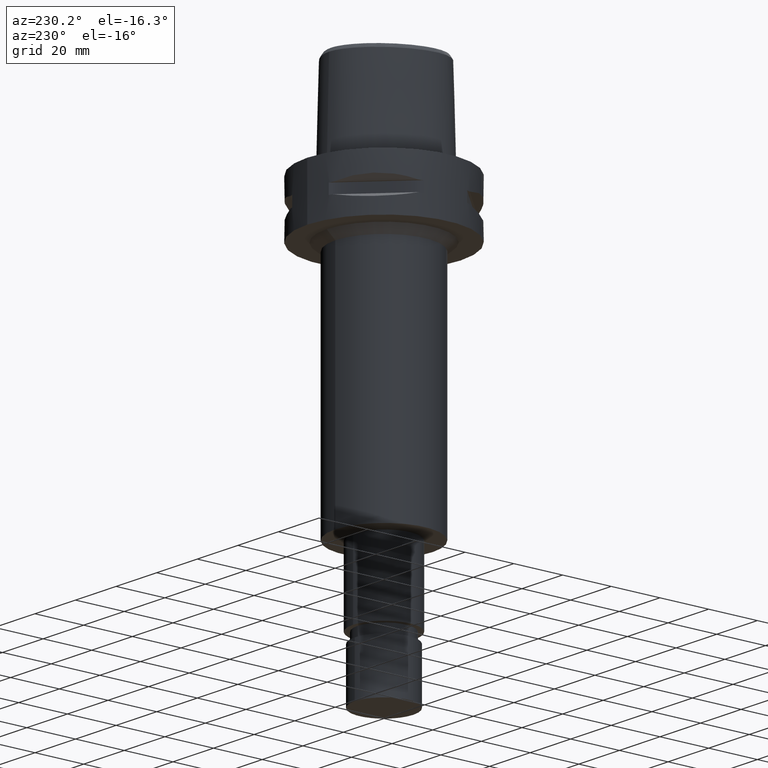
[diagram: clean part render]
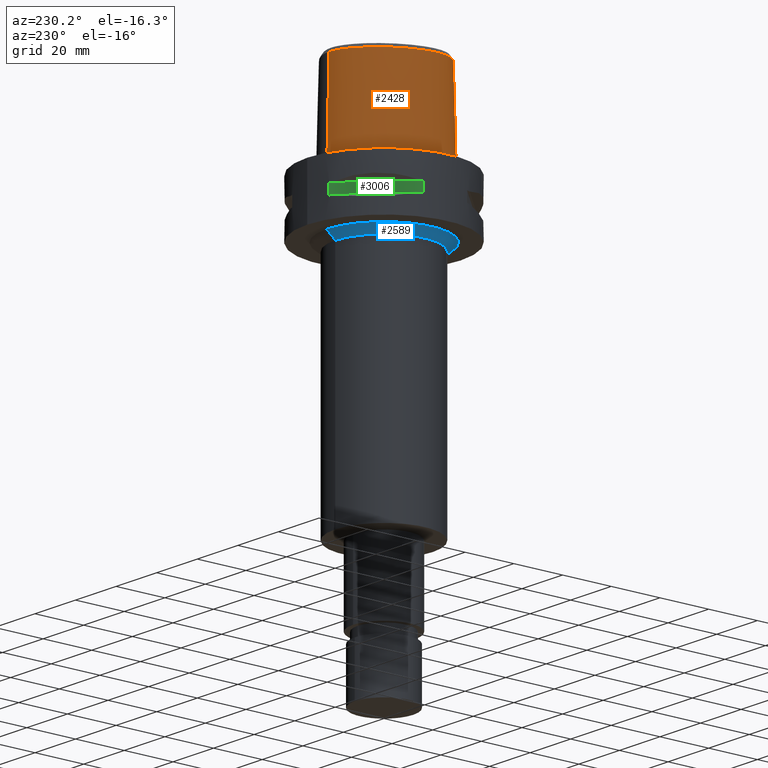
[diagram: same view with three faces highlighted in distinct colors, each labeled with its STEP entity id]
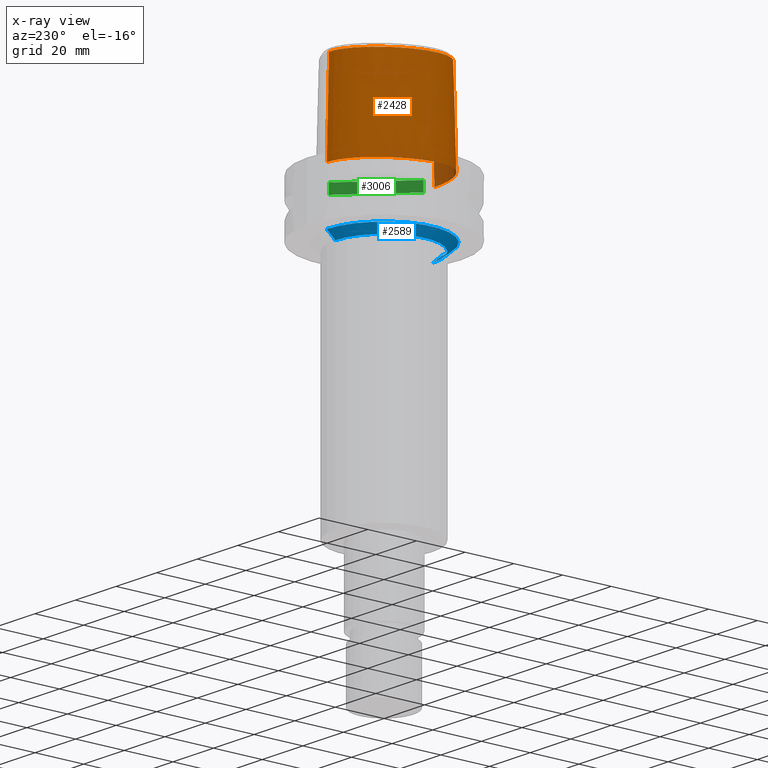
[diagram: x-ray of the same camera — body ghosted, the three highlighted faces saturated]
A machine part, auxiliary view with three faces highlighted in distinct colors.
The next image is the same camera in x-ray (body ghosted, the three faces saturated) — at least one of them is partly hidden behind the body in this view.
Their STEP definitions:

[orange] entity #2428 — the highlighted face is a freeform B-spline surface patch.
#186=CARTESIAN_POINT('',(-3.637738201364E0,-1.956971413237E1,3.652186244848E1));
#187=CARTESIAN_POINT('',(-4.596214291546E0,-1.946759179898E1,3.652183351792E1));
#188=CARTESIAN_POINT('',(-6.455616650880E0,-1.918625052747E1,3.652188283337E1));
#189=CARTESIAN_POINT('',(-9.014616283423E0,-1.856346125823E1,3.652186171838E1));
#190=CARTESIAN_POINT('',(-1.122481407811E1,-1.781245211381E1,3.652187608435E1));
#191=CARTESIAN_POINT('',(-1.317311223023E1,-1.694858801266E1,3.652186209620E1));
#192=CARTESIAN_POINT('',(-1.486991988526E1,-1.599015838104E1,3.652186916697E1));
#193=CARTESIAN_POINT('',(-1.628274226713E1,-1.499251589473E1,3.652186600315E1));
#194=CARTESIAN_POINT('',(-1.746206341881E1,-1.396245457933E1,3.652186741443E1));
#195=CARTESIAN_POINT('',(-1.843297818088E1,-1.291082025189E1,3.652186667196E1));
#196=CARTESIAN_POINT('',(-1.922382930162E1,-1.183984870140E1,3.652191240883E1));
#197=CARTESIAN_POINT('',(-1.986438360685E1,-1.073016133056E1,3.652185770808E1));
#198=CARTESIAN_POINT('',(-2.039448376192E1,-9.516238287825E0,3.652187101360E1));
#199=CARTESIAN_POINT('',(-2.082143421992E1,-8.147191475789E0,3.652186531068E1));
#200=CARTESIAN_POINT('',(-2.112402644291E1,-6.613718304226E0,3.652186978415E1));
#201=CARTESIAN_POINT('',(-2.128254501784E1,-4.889517123142E0,3.652187293171E1));
#202=CARTESIAN_POINT('',(-2.126508184978E1,-2.945078093034E0,3.652186408107E1));
#203=CARTESIAN_POINT('',(-2.104010015591E1,-8.272083189960E-1,
3.652186813258E1));
#204=CARTESIAN_POINT('',(-2.058959878866E1,1.450838442725E0,3.652186987852E1));
#205=CARTESIAN_POINT('',(-1.984871905172E1,3.988453380292E0,3.652186310802E1));
#206=CARTESIAN_POINT('',(-1.881867741573E1,6.619582921024E0,3.652184427655E1));
#207=CARTESIAN_POINT('',(-1.751092218687E1,9.263703909910E0,3.652186369806E1));
#208=CARTESIAN_POINT('',(-1.597084306762E1,1.180128938006E1,3.652186746362E1));
#209=CARTESIAN_POINT('',(-1.426036309561E1,1.414084119145E1,3.652186498635E1));
#210=CARTESIAN_POINT('',(-1.245243783567E1,1.620656872004E1,3.652186539838E1));
#211=CARTESIAN_POINT('',(-1.065400311944E1,1.792467015507E1,3.652186824908E1));
#212=CARTESIAN_POINT('',(-8.928515052359E0,1.930246882317E1,3.652186764513E1));
#213=CARTESIAN_POINT('',(-7.228289482286E0,2.041987750381E1,3.652186669466E1));
#214=CARTESIAN_POINT('',(-5.600596180581E0,2.127186442873E1,3.652186487876E1));
#215=CARTESIAN_POINT('',(-4.078533037974E0,2.188021913689E1,3.652187180955E1));
#216=CARTESIAN_POINT('',(-2.640920208615E0,2.228631978850E1,3.652187072961E1));
#217=CARTESIAN_POINT('',(-1.280910670780E0,2.251428546683E1,3.652181969119E1));
#218=CARTESIAN_POINT('',(-4.274342398121E-1,2.256201468012E1,3.652186680743E1));
#219=CARTESIAN_POINT('',(-1.838531502740E-11,2.256201468012E1,
3.652186680744E1));
#231=CARTESIAN_POINT('',(-3.637738201364E0,-1.956971413237E1,3.652186244848E1));
#232=CARTESIAN_POINT('',(-3.649042726833E0,-1.958170231834E1,3.599710491520E1));
#233=CARTESIAN_POINT('',(-3.671106183707E0,-1.960533297179E1,3.494764182412E1));
#234=CARTESIAN_POINT('',(-3.704089539557E0,-1.964135162194E1,3.337369009748E1));
#235=CARTESIAN_POINT('',(-3.726005756395E0,-1.966575923510E1,3.232454432382E1));
#236=CARTESIAN_POINT('',(-3.736696126116E0,-1.967778323257E1,3.18E1));
#241=DIRECTION('',(-1.665636293796E-9,-2.499140646182E-2,-9.996876660253E-1));
#242=VECTOR('',#241,1.225382733632E1);
#243=CARTESIAN_POINT('',(2.041042029991E-8,-1.988004246002E1,3.180000004972E1));
#244=LINE('',#243,#242);
#248=CARTESIAN_POINT('',(0.E0,-2.018628283969E1,1.955E1));
#249=CARTESIAN_POINT('',(-3.856895391280E-1,-2.018628283969E1,1.955E1));
#250=CARTESIAN_POINT('',(-1.156990957255E0,-2.017597984157E1,1.943895893816E1));
#251=CARTESIAN_POINT('',(-2.218974166701E0,-2.013552730906E1,1.895406583031E1));
#252=CARTESIAN_POINT('',(-3.103837936943E0,-2.008533807411E1,1.818778244968E1));
#253=CARTESIAN_POINT('',(-3.736879261136E0,-2.004595787825E1,1.720042665982E1));
#254=CARTESIAN_POINT('',(-4.064001073615E0,-2.003617272084E1,1.608031858327E1));
#255=CARTESIAN_POINT('',(-4.063020619392E0,-2.006566388540E1,1.491391748472E1));
#256=CARTESIAN_POINT('',(-3.735326478736E0,-2.013171838185E1,1.379707110157E1));
#257=CARTESIAN_POINT('',(-3.103904819207E0,-2.022026156512E1,1.281235779050E1));
#258=CARTESIAN_POINT('',(-2.217371925353E0,-2.030873033323E1,1.204454096443E1));
#259=CARTESIAN_POINT('',(-1.153256243952E0,-2.037314278516E1,1.156000177627E1));
#260=CARTESIAN_POINT('',(-3.840360556272E-1,-2.038876923348E1,1.145E1));
#261=CARTESIAN_POINT('',(-6.476573784197E-13,-2.038876923348E1,1.145E1));
#266=DIRECTION('',(-3.953535233008E-13,-2.499051295390E-2,-9.996876883619E-1));
#267=VECTOR('',#266,1.145357708542E1);
#268=CARTESIAN_POINT('',(-6.476573784197E-13,-2.038876923348E1,1.145E1));
#269=LINE('',#268,#267);
#329=CARTESIAN_POINT('',(3.584904067566E-11,2.347499999999E1,
5.306866057708E-14));
#330=CARTESIAN_POINT('',(-4.425934249249E-1,2.347499999999E1,
5.306866057708E-14));
#331=CARTESIAN_POINT('',(-1.347540240597E0,2.342619104246E1,
-2.462925108702E-14));
#332=CARTESIAN_POINT('',(-2.759385091736E0,2.319514735165E1,0.E0));
#333=CARTESIAN_POINT('',(-4.240303192041E0,2.278911272463E1,0.E0));
#334=CARTESIAN_POINT('',(-5.800522540047E0,2.218327564678E1,0.E0));
#335=CARTESIAN_POINT('',(-7.437892820341E0,2.135235568419E1,0.E0));
#336=CARTESIAN_POINT('',(-9.157184077977E0,2.026173423927E1,0.E0));
#337=CARTESIAN_POINT('',(-1.094315986300E1,1.888157453325E1,0.E0));
#338=CARTESIAN_POINT('',(-1.276613295223E1,1.719216463502E1,0.E0));
#339=CARTESIAN_POINT('',(-1.458165098578E1,1.518880885006E1,0.E0));
#340=CARTESIAN_POINT('',(-1.631719822992E1,1.291146788163E1,0.E0));
#341=CARTESIAN_POINT('',(-1.790888759892E1,1.041336242015E1,0.E0));
#342=CARTESIAN_POINT('',(-1.928429036980E1,7.794383498739E0,0.E0));
#343=CARTESIAN_POINT('',(-2.040331671633E1,5.145336301700E0,0.E0));
#344=CARTESIAN_POINT('',(-2.124023148970E1,2.573980686280E0,0.E0));
#345=CARTESIAN_POINT('',(-2.180429297827E1,1.416733793317E-1,0.E0));
#346=CARTESIAN_POINT('',(-2.211683415069E1,-2.102552498777E0,0.E0));
#347=CARTESIAN_POINT('',(-2.221119242995E1,-4.145710630519E0,0.E0));
#348=CARTESIAN_POINT('',(-2.211903796219E1,-5.995510773279E0,0.E0));
#349=CARTESIAN_POINT('',(-2.187046734906E1,-7.650655585987E0,0.E0));
#350=CARTESIAN_POINT('',(-2.148955285703E1,-9.137235138176E0,0.E0));
#351=CARTESIAN_POINT('',(-2.098804739969E1,-1.048615289708E1,0.E0));
#352=CARTESIAN_POINT('',(-2.036678339055E1,-1.172667110062E1,0.E0));
#353=CARTESIAN_POINT('',(-1.960201090599E1,-1.289757179390E1,0.E0));
#354=CARTESIAN_POINT('',(-1.868739028833E1,-1.400986605028E1,0.E0));
#355=CARTESIAN_POINT('',(-1.759020406811E1,-1.508942649620E1,0.E0));
#356=CARTESIAN_POINT('',(-1.628423636331E1,-1.613439028964E1,0.E0));
#357=CARTESIAN_POINT('',(-1.473804225492E1,-1.713801774676E1,0.E0));
#358=CARTESIAN_POINT('',(-1.292622831926E1,-1.808092209426E1,0.E0));
#359=CARTESIAN_POINT('',(-1.082972864264E1,-1.893611047739E1,0.E0));
#360=CARTESIAN_POINT('',(-8.443448479143E0,-1.966822337565E1,0.E0));
#361=CARTESIAN_POINT('',(-5.794439134800E0,-2.023428714758E1,0.E0));
#362=CARTESIAN_POINT('',(-2.954881275029E0,-2.059190544886E1,
-2.595174225418E-14));
#363=CARTESIAN_POINT('',(-9.990027701863E-1,-2.0675E1,5.591823300695E-14));
#364=CARTESIAN_POINT('',(-5.175869433538E-12,-2.0675E1,5.591823300695E-14));
#1165=DIRECTION('',(1.484519342029E-12,2.499051290972E-2,-9.996876883630E-1));
#1166=VECTOR('',#1165,3.653327657485E1);
#1167=CARTESIAN_POINT('',(-1.838531502740E-11,2.256201468012E1,
3.652186680744E1));
#1168=LINE('',#1167,#1166);
#1540=CARTESIAN_POINT('',(2.041042029991E-8,-1.988004246002E1,
3.180000004972E1));
#1541=CARTESIAN_POINT('',(-4.161790280178E-1,-1.988004245993E1,
3.180000004972E1));
#1542=CARTESIAN_POINT('',(-1.247889105566E0,-1.986528007158E1,
3.179999997680E1));
#1543=CARTESIAN_POINT('',(-2.494485023973E0,-1.979770229313E1,
3.180000000663E1));
#1544=CARTESIAN_POINT('',(-3.322953884429E0,-1.972294683092E1,3.18E1));
#1545=CARTESIAN_POINT('',(-3.736696126116E0,-1.967778323257E1,3.18E1));
#1581=CARTESIAN_POINT('',(-3.736722311399E0,-1.967781602444E1,3.18E1));
#1582=VERTEX_POINT('',#1581);
#1583=VERTEX_POINT('',#231);
#1584=CARTESIAN_POINT('',(-1.838531502740E-11,2.256201468012E1,
3.652186680744E1));
#1585=VERTEX_POINT('',#1584);
#1586=VERTEX_POINT('',#329);
#1587=VERTEX_POINT('',#364);
#1588=VERTEX_POINT('',#1540);
#1589=CARTESIAN_POINT('',(0.E0,-2.018628283969E1,1.955E1));
#1590=VERTEX_POINT('',#1589);
#1591=VERTEX_POINT('',#261);
#2311=CARTESIAN_POINT('',(7.234356454574E-1,2.347140593255E1,
-7.304379142534E-1));
#2312=CARTESIAN_POINT('',(7.042335219889E-1,2.315549811042E1,1.193048593281E1));
#2313=CARTESIAN_POINT('',(6.850313985203E-1,2.283959028830E1,2.459140977987E1));
#2314=CARTESIAN_POINT('',(6.658292750518E-1,2.252368246617E1,3.725233362692E1));
#2315=CARTESIAN_POINT('',(4.823619559663E-1,2.348603818800E1,
-7.304379142534E-1));
#2316=CARTESIAN_POINT('',(4.696382008893E-1,2.316972796060E1,1.193048593281E1));
#2317=CARTESIAN_POINT('',(4.569144458124E-1,2.285341773321E1,2.459140977987E1));
#2318=CARTESIAN_POINT('',(4.441906907355E-1,2.253710750581E1,3.725233362692E1));
#2319=CARTESIAN_POINT('',(-6.149727130068E-1,2.351889465516E1,
-7.304379142534E-1));
#2320=CARTESIAN_POINT('',(-5.985508135811E-1,2.320171268222E1,
1.193048593281E1));
#2321=CARTESIAN_POINT('',(-5.821289141554E-1,2.288453070927E1,
2.459140977987E1));
#2322=CARTESIAN_POINT('',(-5.657070147297E-1,2.256734873633E1,
3.725233362692E1));
#2323=CARTESIAN_POINT('',(-2.568271206985E0,2.331126238968E1,
-7.304379142534E-1));
#2324=CARTESIAN_POINT('',(-2.503210886503E0,2.299958930186E1,1.193048593281E1));
#2325=CARTESIAN_POINT('',(-2.438150566021E0,2.268791621403E1,2.459140977987E1));
#2326=CARTESIAN_POINT('',(-2.373090245540E0,2.237624312620E1,3.725233362692E1));
#2327=CARTESIAN_POINT('',(-5.105252918294E0,2.254305024787E1,
-7.304379142534E-1));
#2328=CARTESIAN_POINT('',(-4.987110634113E0,2.224795272242E1,1.193048593281E1));
#2329=CARTESIAN_POINT('',(-4.868968349932E0,2.195285519697E1,2.459140977987E1));
#2330=CARTESIAN_POINT('',(-4.750826065752E0,2.165775767152E1,3.725233362692E1));
#2331=CARTESIAN_POINT('',(-7.580410843129E0,2.133037926798E1,
-7.304379142534E-1));
#2332=CARTESIAN_POINT('',(-7.420053090985E0,2.105635737294E1,1.193048593281E1));
#2333=CARTESIAN_POINT('',(-7.259695338842E0,2.078233547790E1,2.459140977987E1));
#2334=CARTESIAN_POINT('',(-7.099337586698E0,2.050831358286E1,3.725233362692E1));
#2335=CARTESIAN_POINT('',(-1.075753574195E1,1.918839676204E1,
-7.304379142534E-1));
#2336=CARTESIAN_POINT('',(-1.055288399846E1,1.894467580338E1,1.193048593281E1));
#2337=CARTESIAN_POINT('',(-1.034823225498E1,1.870095484473E1,2.459140977987E1));
#2338=CARTESIAN_POINT('',(-1.014358051149E1,1.845723388607E1,3.725233362692E1));
#2339=CARTESIAN_POINT('',(-1.442198652453E1,1.565278600633E1,
-7.304379142534E-1));
#2340=CARTESIAN_POINT('',(-1.417879751876E1,1.544741189658E1,1.193048593281E1));
#2341=CARTESIAN_POINT('',(-1.393560851300E1,1.524203778684E1,2.459140977987E1));
#2342=CARTESIAN_POINT('',(-1.369241950723E1,1.503666367709E1,3.725233362692E1));
#2343=CARTESIAN_POINT('',(-1.808416038828E1,1.044089487508E1,
-7.304379142534E-1));
#2344=CARTESIAN_POINT('',(-1.780867300270E1,1.028184204037E1,1.193048593281E1));
#2345=CARTESIAN_POINT('',(-1.753318561711E1,1.012278920565E1,2.459140977987E1));
#2346=CARTESIAN_POINT('',(-1.725769823153E1,9.963736370937E0,3.725233362692E1));
#2347=CARTESIAN_POINT('',(-2.076670355469E1,4.663413655995E0,
-7.304379142534E-1));
#2348=CARTESIAN_POINT('',(-2.046725035924E1,4.555493618749E0,1.193048593281E1));
#2349=CARTESIAN_POINT('',(-2.016779716379E1,4.447573581503E0,2.459140977987E1));
#2350=CARTESIAN_POINT('',(-1.986834396833E1,4.339653544258E0,3.725233362692E1));
#2351=CARTESIAN_POINT('',(-2.199640702176E1,-2.778990151999E-1,
-7.304379142534E-1));
#2352=CARTESIAN_POINT('',(-2.168301092765E1,-3.332744184026E-1,
1.193048593281E1));
#2353=CARTESIAN_POINT('',(-2.136961483355E1,-3.886498216052E-1,
2.459140977987E1));
#2354=CARTESIAN_POINT('',(-2.105621873945E1,-4.440252248079E-1,
3.725233362692E1));
#2355=CARTESIAN_POINT('',(-2.226285557127E1,-4.100361500014E0,
-7.304379142534E-1));
#2356=CARTESIAN_POINT('',(-2.194536969746E1,-4.102220499764E0,
1.193048593281E1));
#2357=CARTESIAN_POINT('',(-2.162788382365E1,-4.104079499514E0,
2.459140977987E1));
#2358=CARTESIAN_POINT('',(-2.131039794984E1,-4.105938499264E0,
3.725233362692E1));
#2359=CARTESIAN_POINT('',(-2.207548129695E1,-6.850245536323E0,
-7.304379142534E-1));
#2360=CARTESIAN_POINT('',(-2.176083703238E1,-6.805026031718E0,
1.193048593281E1));
#2361=CARTESIAN_POINT('',(-2.144619276781E1,-6.759806527113E0,
2.459140977987E1));
#2362=CARTESIAN_POINT('',(-2.113154850324E1,-6.714587022509E0,
3.725233362692E1));
#2363=CARTESIAN_POINT('',(-2.157281239827E1,-9.001246196864E0,
-7.304379142534E-1));
#2364=CARTESIAN_POINT('',(-2.126836733655E1,-8.910752222061E0,
1.193048593281E1));
#2365=CARTESIAN_POINT('',(-2.096392227483E1,-8.820258247258E0,
2.459140977987E1));
#2366=CARTESIAN_POINT('',(-2.065947721311E1,-8.729764272455E0,
3.725233362692E1));
#2367=CARTESIAN_POINT('',(-2.094844326403E1,-1.061175397238E1,
-7.304379142534E-1));
#2368=CARTESIAN_POINT('',(-2.065879040418E1,-1.048283615954E1,
1.193048593281E1));
#2369=CARTESIAN_POINT('',(-2.036913754434E1,-1.035391834669E1,
2.459140977987E1));
#2370=CARTESIAN_POINT('',(-2.007948468449E1,-1.022500053385E1,
3.725233362692E1));
#2371=CARTESIAN_POINT('',(-2.036546125022E1,-1.175800453502E1,
-7.304379142534E-1));
#2372=CARTESIAN_POINT('',(-2.009084466295E1,-1.159945457383E1,
1.193048593281E1));
#2373=CARTESIAN_POINT('',(-1.981622807568E1,-1.144090461264E1,
2.459140977987E1));
#2374=CARTESIAN_POINT('',(-1.954161148841E1,-1.128235465146E1,
3.725233362692E1));
#2375=CARTESIAN_POINT('',(-1.966427015102E1,-1.283600705019E1,
-7.304379142534E-1));
#2376=CARTESIAN_POINT('',(-1.940779761640E1,-1.264961922193E1,
1.193048593281E1));
#2377=CARTESIAN_POINT('',(-1.915132508179E1,-1.246323139367E1,
2.459140977987E1));
#2378=CARTESIAN_POINT('',(-1.889485254717E1,-1.227684356541E1,
3.725233362692E1));
#2379=CARTESIAN_POINT('',(-1.858171407015E1,-1.418198046955E1,
-7.304379142534E-1));
#2380=CARTESIAN_POINT('',(-1.835112147890E1,-1.396357029936E1,
1.193048593281E1));
#2381=CARTESIAN_POINT('',(-1.812052888765E1,-1.374516012917E1,
2.459140977987E1));
#2382=CARTESIAN_POINT('',(-1.788993629640E1,-1.352674995898E1,
3.725233362692E1));
#2383=CARTESIAN_POINT('',(-1.697022731474E1,-1.569280483578E1,
-7.304379142534E-1));
#2384=CARTESIAN_POINT('',(-1.677374377546E1,-1.544292466144E1,
1.193048593281E1));
#2385=CARTESIAN_POINT('',(-1.657726023617E1,-1.519304448711E1,
2.459140977987E1));
#2386=CARTESIAN_POINT('',(-1.638077669689E1,-1.494316431277E1,
3.725233362692E1));
#2387=CARTESIAN_POINT('',(-1.468244497411E1,-1.723001773541E1,
-7.304379142534E-1));
#2388=CARTESIAN_POINT('',(-1.452531258901E1,-1.695413740498E1,
1.193048593281E1));
#2389=CARTESIAN_POINT('',(-1.436818020391E1,-1.667825707456E1,
2.459140977987E1));
#2390=CARTESIAN_POINT('',(-1.421104781882E1,-1.640237674413E1,
3.725233362692E1));
#2391=CARTESIAN_POINT('',(-1.123887130454E1,-1.891049776569E1,
-7.304379142534E-1));
#2392=CARTESIAN_POINT('',(-1.113012652525E1,-1.861140107709E1,
1.193048593281E1));
#2393=CARTESIAN_POINT('',(-1.102138174596E1,-1.831230438849E1,
2.459140977987E1));
#2394=CARTESIAN_POINT('',(-1.091263696668E1,-1.801320769990E1,
3.725233362692E1));
#2395=CARTESIAN_POINT('',(-6.344715577739E0,-2.031619965548E1,
-7.304379142534E-1));
#2396=CARTESIAN_POINT('',(-6.288476563264E0,-2.000290562730E1,
1.193048593281E1));
#2397=CARTESIAN_POINT('',(-6.232237548789E0,-1.968961159911E1,
2.459140977987E1));
#2398=CARTESIAN_POINT('',(-6.175998534314E0,-1.937631757093E1,
3.725233362692E1));
#2399=CARTESIAN_POINT('',(-1.886862292543E0,-2.071358860499E1,
-7.304379142534E-1));
#2400=CARTESIAN_POINT('',(-1.870070487006E0,-2.039691383044E1,
1.193048593281E1));
#2401=CARTESIAN_POINT('',(-1.853278681470E0,-2.008023905590E1,
2.459140977987E1));
#2402=CARTESIAN_POINT('',(-1.836486875934E0,-1.976356428135E1,
3.725233362692E1));
#2403=CARTESIAN_POINT('',(4.560943670857E-1,-2.069106769066E1,
-7.304379142534E-1));
#2404=CARTESIAN_POINT('',(4.520368069674E-1,-2.037458451052E1,
1.193048593281E1));
#2405=CARTESIAN_POINT('',(4.479792468490E-1,-2.005810133038E1,
2.459140977987E1));
#2406=CARTESIAN_POINT('',(4.439216867307E-1,-1.974161815024E1,
3.725233362692E1));
#2407=CARTESIAN_POINT('',(6.840430854694E-1,-2.068668155573E1,
-7.304379142534E-1));
#2408=CARTESIAN_POINT('',(6.779535324647E-1,-2.037023512891E1,
1.193048593281E1));
#2409=CARTESIAN_POINT('',(6.718639794600E-1,-2.005378870209E1,
2.459140977987E1));
#2410=CARTESIAN_POINT('',(6.657744264553E-1,-1.973734227527E1,
3.725233362692E1));
#2411=B_SPLINE_SURFACE_WITH_KNOTS('',3,3,((#2311,#2312,#2313,#2314),(#2315,
#2316,#2317,#2318),(#2319,#2320,#2321,#2322),(#2323,#2324,#2325,#2326),(#2327,
#2328,#2329,#2330),(#2331,#2332,#2333,#2334),(#2335,#2336,#2337,#2338),(#2339,
#2340,#2341,#2342),(#2343,#2344,#2345,#2346),(#2347,#2348,#2349,#2350),(#2351,
#2352,#2353,#2354),(#2355,#2356,#2357,#2358),(#2359,#2360,#2361,#2362),(#2363,
#2364,#2365,#2366),(#2367,#2368,#2369,#2370),(#2371,#2372,#2373,#2374),(#2375,
#2376,#2377,#2378),(#2379,#2380,#2381,#2382),(#2383,#2384,#2385,#2386),(#2387,
#2388,#2389,#2390),(#2391,#2392,#2393,#2394),(#2395,#2396,#2397,#2398),(#2399,
#2400,#2401,#2402),(#2403,#2404,#2405,#2406),(#2407,#2408,#2409,#2410)),
.UNSPECIFIED.,.F.,.F.,.F.,(4,1,1,1,1,1,1,1,1,1,1,1,1,1,1,1,1,1,1,1,1,1,4),(4,4),
(-1.173777939041E-2,0.E0,4.166666666722E-2,8.333333333384E-2,1.250000000005E-1,
1.666666666671E-1,2.500000000004E-1,3.333333333336E-1,4.166666666669E-1,
5.000000000002E-1,5.416666666668E-1,5.833333333334E-1,6.250000000001E-1,
6.458333333334E-1,6.666666666667E-1,6.875E-1,7.083333333333E-1,7.5E-1,
7.916666666666E-1,8.333333333332E-1,9.166666666665E-1,1.E0,1.008985696609E0),(
-4.784434234212E-9,1.000000244006E0),.UNSPECIFIED.);
#2413=ORIENTED_EDGE('',*,*,#2412,.F.);
#2415=ORIENTED_EDGE('',*,*,#2414,.F.);
#2416=ORIENTED_EDGE('',*,*,#2304,.F.);
#2417=ORIENTED_EDGE('',*,*,#1789,.T.);
#2419=ORIENTED_EDGE('',*,*,#2418,.F.);
#2421=ORIENTED_EDGE('',*,*,#2420,.T.);
#2423=ORIENTED_EDGE('',*,*,#2422,.T.);
#2425=ORIENTED_EDGE('',*,*,#2424,.T.);
#2426=EDGE_LOOP('',(#2413,#2415,#2416,#2417,#2419,#2421,#2423,#2425));
#2427=FACE_OUTER_BOUND('',#2426,.F.);
#220=B_SPLINE_CURVE_WITH_KNOTS('',3,(#186,#187,#188,#189,#190,#191,#192,#193,
#194,#195,#196,#197,#198,#199,#200,#201,#202,#203,#204,#205,#206,#207,#208,#209,
#210,#211,#212,#213,#214,#215,#216,#217,#218,#219),.UNSPECIFIED.,.F.,.F.,(4,1,1,
1,1,1,1,1,1,1,1,1,1,1,1,1,1,1,1,1,1,1,1,1,1,1,1,1,1,1,1,4),(0.E0,
3.225806451613E-2,6.451612903226E-2,9.677419354839E-2,1.290322580645E-1,
1.612903225806E-1,1.935483870968E-1,2.258064516129E-1,2.580645161290E-1,
2.903225806452E-1,3.225806451613E-1,3.548387096774E-1,3.870967741935E-1,
4.193548387097E-1,4.516129032258E-1,4.838709677419E-1,5.161290322581E-1,
5.483870967742E-1,5.806451612903E-1,6.129032258065E-1,6.451612903226E-1,
6.774193548387E-1,7.096774193548E-1,7.419354838710E-1,7.741935483871E-1,
8.064516129032E-1,8.387096774194E-1,8.709677419355E-1,9.032258064516E-1,
9.354838709677E-1,9.677419354839E-1,1.E0),.UNSPECIFIED.);
#237=B_SPLINE_CURVE_WITH_KNOTS('',3,(#231,#232,#233,#234,#235,#236),
.UNSPECIFIED.,.F.,.F.,(4,1,1,4),(0.E0,3.333333333333E-1,6.666666666667E-1,1.E0),
.UNSPECIFIED.);
#262=B_SPLINE_CURVE_WITH_KNOTS('',3,(#248,#249,#250,#251,#252,#253,#254,#255,
#256,#257,#258,#259,#260,#261),.UNSPECIFIED.,.F.,.F.,(4,1,1,1,1,1,1,1,1,1,1,4),(
0.E0,9.090909090909E-2,1.818181818182E-1,2.727272727273E-1,3.636363636364E-1,
4.545454545455E-1,5.454545454545E-1,6.363636363636E-1,7.272727272727E-1,
8.181818181818E-1,9.090909090909E-1,1.E0),.UNSPECIFIED.);
#365=B_SPLINE_CURVE_WITH_KNOTS('',3,(#329,#330,#331,#332,#333,#334,#335,#336,
#337,#338,#339,#340,#341,#342,#343,#344,#345,#346,#347,#348,#349,#350,#351,#352,
#353,#354,#355,#356,#357,#358,#359,#360,#361,#362,#363,#364),.UNSPECIFIED.,.F.,
.F.,(4,1,1,1,1,1,1,1,1,1,1,1,1,1,1,1,1,1,1,1,1,1,1,1,1,1,1,1,1,1,1,1,1,4),(0.E0,
3.030303030303E-2,6.060606060606E-2,9.090909090909E-2,1.212121212121E-1,
1.515151515152E-1,1.818181818182E-1,2.121212121212E-1,2.424242424242E-1,
2.727272727273E-1,3.030303030303E-1,3.333333333333E-1,3.636363636364E-1,
3.939393939394E-1,4.242424242424E-1,4.545454545455E-1,4.848484848485E-1,
5.151515151515E-1,5.454545454545E-1,5.757575757576E-1,6.060606060606E-1,
6.363636363636E-1,6.666666666667E-1,6.969696969697E-1,7.272727272727E-1,
7.575757575758E-1,7.878787878788E-1,8.181818181818E-1,8.484848484848E-1,
8.787878787879E-1,9.090909090909E-1,9.393939393939E-1,9.696969696970E-1,1.E0),
.UNSPECIFIED.);
#1546=B_SPLINE_CURVE_WITH_KNOTS('',3,(#1540,#1541,#1542,#1543,#1544,#1545),
.UNSPECIFIED.,.F.,.F.,(4,1,1,4),(0.E0,3.333333333333E-1,6.666666666667E-1,1.E0),
.UNSPECIFIED.);
#1789=EDGE_CURVE('',#1583,#1582,#237,.T.);
#2304=EDGE_CURVE('',#1583,#1585,#220,.T.);
#2412=EDGE_CURVE('',#1586,#1587,#365,.T.);
#2414=EDGE_CURVE('',#1585,#1586,#1168,.T.);
#2418=EDGE_CURVE('',#1588,#1582,#1546,.T.);
#2420=EDGE_CURVE('',#1588,#1590,#244,.T.);
#2422=EDGE_CURVE('',#1590,#1591,#262,.T.);
#2424=EDGE_CURVE('',#1591,#1587,#269,.T.);
#2428=ADVANCED_FACE('',(#2427),#2411,.T.);

[blue] entity #2589 — the highlighted conical surface has half-angle 49.776 deg.
#507=CARTESIAN_POINT('',(0.E0,0.E0,-2.2E1));
#508=DIRECTION('',(0.E0,0.E0,-1.E0));
#509=DIRECTION('',(0.E0,-1.E0,0.E0));
#510=AXIS2_PLACEMENT_3D('',#507,#508,#509);
#515=DIRECTION('',(0.E0,-7.635276600831E-1,-6.457751251697E-1));
#516=VECTOR('',#515,4.645579990729E0);
#517=CARTESIAN_POINT('',(0.E0,2.354702882005E1,-2.2E1));
#518=LINE('',#517,#516);
#530=DIRECTION('',(0.E0,7.635276600831E-1,-6.457751251697E-1));
#531=VECTOR('',#530,4.645579990729E0);
#532=CARTESIAN_POINT('',(0.E0,-2.354702882005E1,-2.2E1));
#533=LINE('',#532,#531);
#537=CARTESIAN_POINT('',(0.E0,0.E0,-2.5E1));
#538=DIRECTION('',(0.E0,0.E0,-1.E0));
#539=DIRECTION('',(0.E0,-1.E0,0.E0));
#540=AXIS2_PLACEMENT_3D('',#537,#538,#539);
#1652=CARTESIAN_POINT('',(0.E0,2.354702882005E1,-2.2E1));
#1653=CARTESIAN_POINT('',(0.E0,-2.354702882005E1,-2.2E1));
#1654=VERTEX_POINT('',#1652);
#1655=VERTEX_POINT('',#1653);
#1656=CARTESIAN_POINT('',(0.E0,2.E1,-2.5E1));
#1657=VERTEX_POINT('',#1656);
#1658=CARTESIAN_POINT('',(0.E0,-2.E1,-2.5E1));
#1659=VERTEX_POINT('',#1658);
#2577=CARTESIAN_POINT('',(0.E0,0.E0,-2.35E1));
#2578=DIRECTION('',(0.E0,0.E0,1.E0));
#2579=DIRECTION('',(0.E0,1.E0,0.E0));
#2580=AXIS2_PLACEMENT_3D('',#2577,#2578,#2579);
#2581=CONICAL_SURFACE('',#2580,2.177351441003E1,4.977618340398E1);
#2582=ORIENTED_EDGE('',*,*,#2567,.F.);
#2583=ORIENTED_EDGE('',*,*,#2557,.F.);
#2584=ORIENTED_EDGE('',*,*,#2571,.T.);
#2586=ORIENTED_EDGE('',*,*,#2585,.T.);
#2587=EDGE_LOOP('',(#2582,#2583,#2584,#2586));
#2588=FACE_OUTER_BOUND('',#2587,.F.);
#511=CIRCLE('',#510,2.354702882005E1);
#541=CIRCLE('',#540,2.E1);
#2557=EDGE_CURVE('',#1655,#1654,#511,.T.);
#2567=EDGE_CURVE('',#1654,#1657,#518,.T.);
#2571=EDGE_CURVE('',#1655,#1659,#533,.T.);
#2585=EDGE_CURVE('',#1659,#1657,#541,.T.);
#2589=ADVANCED_FACE('',(#2588),#2581,.T.);

[green] entity #3006 — the highlighted planar face has unit normal (0.7071, -0.7071, 0).
#376=DIRECTION('',(0.E0,0.E0,-1.E0));
#377=VECTOR('',#376,4.1E0);
#378=CARTESIAN_POINT('',(-8.981198972018E0,3.019251670572E1,-9.95E0));
#379=LINE('',#378,#377);
#394=DIRECTION('',(0.E0,0.E0,1.E0));
#395=VECTOR('',#394,4.1E0);
#396=CARTESIAN_POINT('',(-3.019251670572E1,8.981198972018E0,-1.405E1));
#397=LINE('',#396,#395);
#1029=DIRECTION('',(-7.071067811865E-1,-7.071067811865E-1,0.E0));
#1030=VECTOR('',#1029,2.999733321480E1);
#1031=CARTESIAN_POINT('',(-8.981198972018E0,3.019251670572E1,-9.95E0));
#1032=LINE('',#1031,#1030);
#1052=DIRECTION('',(-7.071067811865E-1,-7.071067811865E-1,0.E0));
#1053=VECTOR('',#1052,2.999733321480E1);
#1054=CARTESIAN_POINT('',(-8.981198972018E0,3.019251670572E1,-1.405E1));
#1055=LINE('',#1054,#1053);
#1602=CARTESIAN_POINT('',(-8.981198972020E0,3.019251670572E1,-9.95E0));
#1603=VERTEX_POINT('',#1602);
#1604=CARTESIAN_POINT('',(-8.981198972018E0,3.019251670572E1,-1.405E1));
#1605=VERTEX_POINT('',#1604);
#1609=CARTESIAN_POINT('',(-3.019251670572E1,8.981198972020E0,-1.405E1));
#1610=VERTEX_POINT('',#1609);
#1611=CARTESIAN_POINT('',(-3.019251670572E1,8.981198972018E0,-9.95E0));
#1612=VERTEX_POINT('',#1611);
#2994=CARTESIAN_POINT('',(-3.372899346260E1,5.444722215136E0,-9.95E0));
#2995=DIRECTION('',(7.071067811865E-1,-7.071067811865E-1,0.E0));
#2996=DIRECTION('',(0.E0,0.E0,-1.E0));
#2997=AXIS2_PLACEMENT_3D('',#2994,#2995,#2996);
#2998=PLANE('',#2997);
#2999=ORIENTED_EDGE('',*,*,#2472,.F.);
#3001=ORIENTED_EDGE('',*,*,#3000,.F.);
#3002=ORIENTED_EDGE('',*,*,#2464,.F.);
#3003=ORIENTED_EDGE('',*,*,#2987,.T.);
#3004=EDGE_LOOP('',(#2999,#3001,#3002,#3003));
#3005=FACE_OUTER_BOUND('',#3004,.F.);
#2464=EDGE_CURVE('',#1603,#1605,#379,.T.);
#2472=EDGE_CURVE('',#1610,#1612,#397,.T.);
#2987=EDGE_CURVE('',#1603,#1612,#1032,.T.);
#3000=EDGE_CURVE('',#1605,#1610,#1055,.T.);
#3006=ADVANCED_FACE('',(#3005),#2998,.F.);